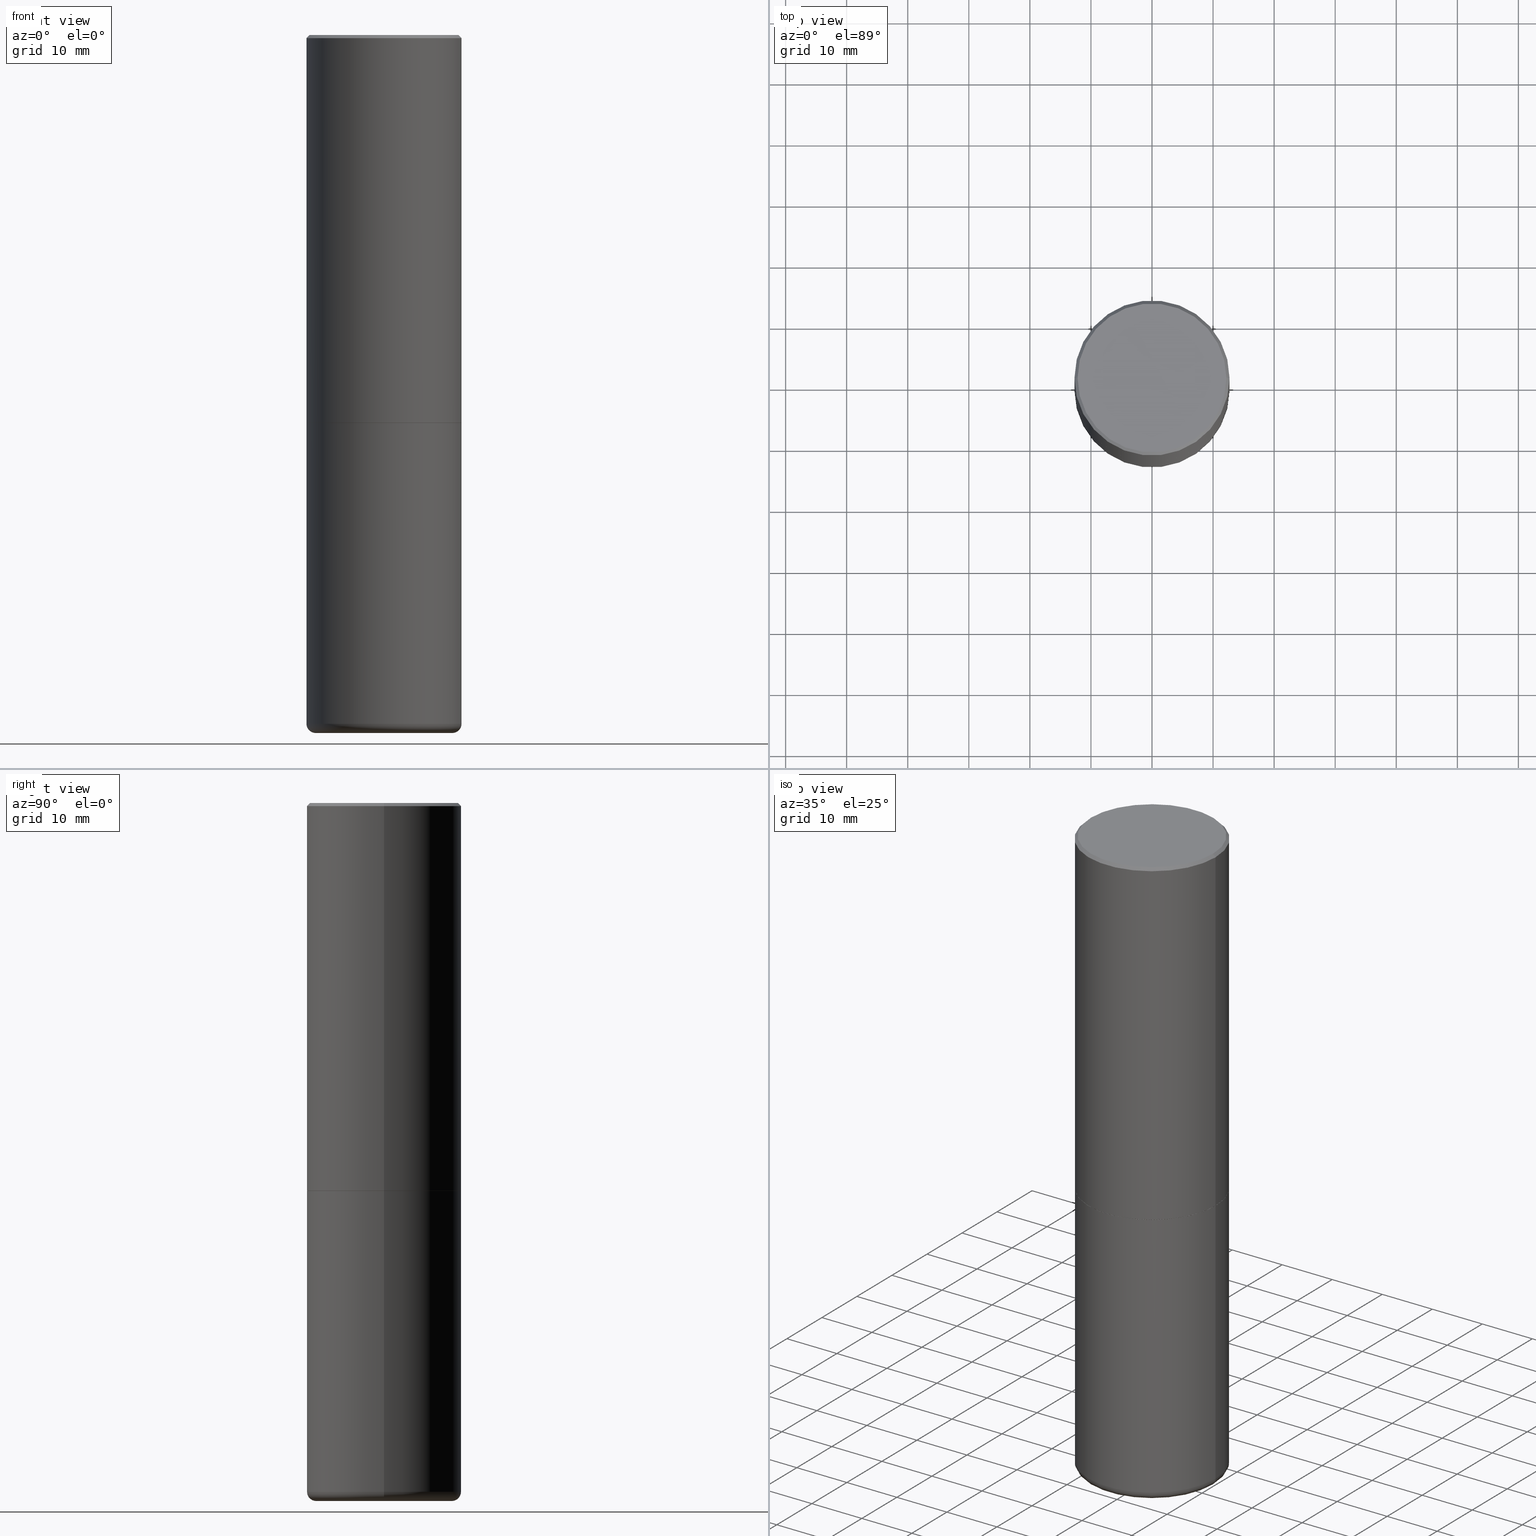
[diagram: canonical four-view strip — front | top / right | iso, engineering-drawing reading convention]
A machine part, canonical four-view strip (front | top / right | iso — engineering-drawing reading convention). The complete STEP part file that produces these views, byte-faithful:
ISO-10303-21;
HEADER;
FILE_DESCRIPTION (( 'STEP AP203' ),
    '1' );
FILE_NAME ('38660.STEP',
    '2024-03-03T11:23:34',
    ( '' ),
    ( '' ),
    'SwSTEP 2.0',
    'SolidWorks 2023',
    '' );
FILE_SCHEMA (( 'CONFIG_CONTROL_DESIGN' ));
ENDSEC;

DATA;
#1 = DIRECTION ( 'NONE',  ( 1.000000000000000000, -6.982962677686269077E-15, 0.000000000000000000 ) ) ;
#2 = AXIS2_PLACEMENT_3D ( 'NONE', #137, #275, #305 ) ;
#3 = CC_DESIGN_APPROVAL ( #101, ( #155 ) ) ;
#4 = ORIENTED_EDGE ( 'NONE', *, *, #262, .T. ) ;
#5 = ADVANCED_FACE ( 'NONE', ( #62 ), #239, .T. ) ;
#6 = PRODUCT_DEFINITION ( 'UNKNOWN', '', #155, #264 ) ;
#7 = CARTESIAN_POINT ( 'NONE',  ( 0.5000000000000000000, -1.222018468595099830E-14, -2.500000000000000000 ) ) ;
#8 = CIRCLE ( 'NONE', #256, 0.4999999999999999445 ) ;
#9 = ADVANCED_FACE ( 'NONE', ( #167 ), #205, .T. ) ;
#10 = APPROVAL_STATUS ( 'not_yet_approved' ) ;
#11 = PERSON_AND_ORGANIZATION_ROLE ( 'classification_officer' ) ;
#12 = AXIS2_PLACEMENT_3D ( 'NONE', #243, #401, #70 ) ;
#13 = FACE_OUTER_BOUND ( 'NONE', #118, .T. ) ;
#14 = EDGE_CURVE ( 'NONE', #312, #115, #348, .T. ) ;
#15 = DIRECTION ( 'NONE',  ( 1.000000000000000000, -6.982962677686266711E-15, 0.000000000000000000 ) ) ;
#16 = EDGE_LOOP ( 'NONE', ( #411, #406, #53, #126 ) ) ;
#17 = PERSON_AND_ORGANIZATION ( #43, #354 ) ;
#18 = CARTESIAN_POINT ( 'NONE',  ( 0.4999999999999999445, -3.500078625662628685E-15, -0.02000000000000010797 ) ) ;
#19 = ORIENTED_EDGE ( 'NONE', *, *, #139, .T. ) ;
#20 = EDGE_CURVE ( 'NONE', #413, #394, #388, .T. ) ;
#21 = DIRECTION ( 'NONE',  ( -2.445468806185136597E-29, 3.491481338843145583E-15, 1.000000000000000000 ) ) ;
#22 = CIRCLE ( 'NONE', #387, 0.5000000000000002220 ) ;
#23 = DIRECTION ( 'NONE',  ( 1.000000000000000000, -6.982962677686269866E-15, 0.000000000000000000 ) ) ;
#24 = CC_DESIGN_PERSON_AND_ORGANIZATION_ASSIGNMENT ( #238, #47, ( #155 ) ) ;
#25 = ORIENTED_EDGE ( 'NONE', *, *, #373, .F. ) ;
#26 = LINE ( 'NONE', #132, #311 ) ;
#27 = DIRECTION ( 'NONE',  ( -2.445468806185136597E-29, 3.491481338843145583E-15, 1.000000000000000000 ) ) ;
#28 = DIRECTION ( 'NONE',  ( 1.000000000000000000, 0.000000000000000000, 0.000000000000000000 ) ) ;
#29 = AXIS2_PLACEMENT_3D ( 'NONE', #255, #412, #52 ) ;
#30 = CC_DESIGN_APPROVAL ( #317, ( #247 ) ) ;
#31 = DIRECTION ( 'NONE',  ( 1.000000000000000000, -6.982962677686266711E-15, 0.000000000000000000 ) ) ;
#32 = DIRECTION ( 'NONE',  ( 1.000000000000000000, -6.982962677686262766E-15, 0.000000000000000000 ) ) ;
#33 = ORIENTED_EDGE ( 'NONE', *, *, #84, .F. ) ;
#34 = DIRECTION ( 'NONE',  ( 7.105427357601001859E-15, 1.000000000000000000, -3.491481338843145583E-15 ) ) ;
#35 = PRODUCT ( '38660', '38660', '', ( #195 ) ) ;
#36 = LOCAL_TIME ( 6, 23, 34.00000000000000000, #271 ) ;
#37 = LINE ( 'NONE', #170, #153 ) ;
#38 = CARTESIAN_POINT ( 'NONE',  ( 0.4400000000000000022, -1.857468072264552372E-14, -4.440000000000000391 ) ) ;
#39 = EDGE_CURVE ( 'NONE', #66, #413, #22, .T. ) ;
#40 = AXIS2_PLACEMENT_3D ( 'NONE', #396, #337, #31 ) ;
#41 = CARTESIAN_POINT ( 'NONE',  ( 0.5000000000000000000, -3.491481338843133355E-15, 2.438088387897967896E-29 ) ) ;
#42 = DATE_TIME_ROLE ( 'creation_date' ) ;
#43 = PERSON ( 'UNSPECIFIED', 'UNSPECIFIED', 'UNSPECIFIED', ('UNSPECIFIED'), ('UNSPECIFIED'), ('UNSPECIFIED') ) ;
#44 = EDGE_CURVE ( 'NONE', #66, #163, #272, .T. ) ;
#45 = CARTESIAN_POINT ( 'NONE',  ( 4.890937612370299433E-31, -6.982962677686328587E-17, -0.02000000000000010797 ) ) ;
#46 = DIRECTION ( 'NONE',  ( -2.445468806185136597E-29, 3.491481338843145583E-15, 1.000000000000000000 ) ) ;
#47 = PERSON_AND_ORGANIZATION_ROLE ( 'creator' ) ;
#48 = AXIS2_PLACEMENT_3D ( 'NONE', #340, #134, #173 ) ;
#49 = VECTOR ( 'NONE', #81, 39.37007874015748143 ) ;
#50 = CARTESIAN_POINT ( 'NONE',  ( -0.4989999999999999991, -5.183095095664965021E-15, -2.500000000000000000 ) ) ;
#51 = ORIENTED_EDGE ( 'NONE', *, *, #219, .T. ) ;
#52 = DIRECTION ( 'NONE',  ( 1.000000000000000000, -6.982962677686265922E-15, 4.876176775795935793E-29 ) ) ;
#53 = ORIENTED_EDGE ( 'NONE', *, *, #176, .T. ) ;
#54 = DIRECTION ( 'NONE',  ( 2.445468806185136597E-29, -3.491481338843145583E-15, -1.000000000000000000 ) ) ;
#55 = DIRECTION ( 'NONE',  ( 2.438088387897960049E-29, -3.491481338843145188E-15, -1.000000000000000000 ) ) ;
#56 = VECTOR ( 'NONE', #95, 39.37007874015748143 ) ;
#57 =( GEOMETRIC_REPRESENTATION_CONTEXT ( 3 ) GLOBAL_UNCERTAINTY_ASSIGNED_CONTEXT ( ( #102 ) ) GLOBAL_UNIT_ASSIGNED_CONTEXT ( ( #269, #341, #228 ) ) REPRESENTATION_CONTEXT ( 'NONE', 'WORKASPACE' ) );
#58 = DIRECTION ( 'NONE',  ( -2.445468806185136597E-29, 3.491481338843145583E-15, 1.000000000000000000 ) ) ;
#59 = ORIENTED_EDGE ( 'NONE', *, *, #61, .F. ) ;
#60 = DIRECTION ( 'NONE',  ( 0.000000000000000000, 0.000000000000000000, 1.000000000000000000 ) ) ;
#61 = EDGE_CURVE ( 'NONE', #90, #160, #240, .T. ) ;
#62 = FACE_OUTER_BOUND ( 'NONE', #82, .T. ) ;
#63 = ORIENTED_EDGE ( 'NONE', *, *, #20, .T. ) ;
#64 = CARTESIAN_POINT ( 'NONE',  ( 0.5000000000000002220, -1.221669320461215845E-14, -2.499000000000000110 ) ) ;
#65 = ORIENTED_EDGE ( 'NONE', *, *, #286, .T. ) ;
#66 = VERTEX_POINT ( 'NONE', #109 ) ;
#67 = AXIS2_PLACEMENT_3D ( 'NONE', #45, #319, #279 ) ;
#68 = AXIS2_PLACEMENT_3D ( 'NONE', #404, #310, #333 ) ;
#69 = DIRECTION ( 'NONE',  ( -2.445468806185136877E-29, 3.491481338843145188E-15, 1.000000000000000000 ) ) ;
#70 = DIRECTION ( 'NONE',  ( 1.000000000000000000, -6.982962677686269077E-15, 0.000000000000000000 ) ) ;
#71 = FACE_OUTER_BOUND ( 'NONE', #93, .T. ) ;
#72 = CC_DESIGN_PERSON_AND_ORGANIZATION_ASSIGNMENT ( #116, #143, ( #6 ) ) ;
#73 = SHAPE_DEFINITION_REPRESENTATION ( #131, #235 ) ;
#74 = DIRECTION ( 'NONE',  ( -2.445468806185136597E-29, 3.491481338843145583E-15, 1.000000000000000000 ) ) ;
#75 = APPROVAL_STATUS ( 'not_yet_approved' ) ;
#76 = CC_DESIGN_PERSON_AND_ORGANIZATION_ASSIGNMENT ( #302, #164, ( #35 ) ) ;
#77 = PLANE ( 'NONE',  #293 ) ;
#78 = EDGE_LOOP ( 'NONE', ( #409, #418, #303, #298 ) ) ;
#79 = VECTOR ( 'NONE', #151, 39.37007874015748143 ) ;
#80 = AXIS2_PLACEMENT_3D ( 'NONE', #94, #34, #393 ) ;
#81 = DIRECTION ( 'NONE',  ( -2.445468806185136877E-29, 3.491481338843145188E-15, 1.000000000000000000 ) ) ;
#82 = EDGE_LOOP ( 'NONE', ( #225, #187, #63, #221 ) ) ;
#83 = DIRECTION ( 'NONE',  ( 1.000000000000000000, -6.982962677686266711E-15, 4.876176775795935793E-29 ) ) ;
#84 = EDGE_CURVE ( 'NONE', #261, #184, #140, .T. ) ;
#85 = DIRECTION ( 'NONE',  ( -0.7071067811867165487, 7.493145998870964739E-15, 0.7071067811863784858 ) ) ;
#86 = APPROVAL ( #127, 'UNSPECIFIED' ) ;
#87 = DIRECTION ( 'NONE',  ( 1.000000000000000000, -6.982962677686266711E-15, 4.876431871984414276E-29 ) ) ;
#88 = VECTOR ( 'NONE', #227, 39.37007874015748143 ) ;
#89 = CC_DESIGN_APPROVAL ( #86, ( #6 ) ) ;
#90 = VERTEX_POINT ( 'NONE', #208 ) ;
#91 = EDGE_LOOP ( 'NONE', ( #371, #355, #381, #252 ) ) ;
#92 = CARTESIAN_POINT ( 'NONE',  ( 6.113672015462842613E-29, -8.728703347107864943E-15, -2.500000000000000000 ) ) ;
#93 = EDGE_LOOP ( 'NONE', ( #19, #100, #258, #204 ) ) ;
#94 = CARTESIAN_POINT ( 'NONE',  ( -0.4400000000000000022, -1.237578910711912656E-14, -4.440000000000000391 ) ) ;
#95 = DIRECTION ( 'NONE',  ( -2.445468806185136877E-29, 3.491481338843145188E-15, 1.000000000000000000 ) ) ;
#96 = AXIS2_PLACEMENT_3D ( 'NONE', #372, #27, #342 ) ;
#97 = CIRCLE ( 'NONE', #80, 0.05999999999999969941 ) ;
#98 = ADVANCED_FACE ( 'NONE', ( #246 ), #284, .T. ) ;
#99 = CARTESIAN_POINT ( 'NONE',  ( 7.306959900346538153E-46, -1.043240219266313067E-31, -2.987958743070287587E-17 ) ) ;
#100 = ORIENTED_EDGE ( 'NONE', *, *, #268, .T. ) ;
#101 = APPROVAL ( #75, 'UNSPECIFIED' ) ;
#102 = UNCERTAINTY_MEASURE_WITH_UNIT (LENGTH_MEASURE( 1.000000000000000082E-05 ), #269, 'distance_accuracy_value', 'NONE');
#103 = APPROVAL_ROLE ( '' ) ;
#104 = EDGE_LOOP ( 'NONE', ( #366, #358 ) ) ;
#105 = AXIS2_PLACEMENT_3D ( 'NONE', #277, #58, #32 ) ;
#106 = EDGE_CURVE ( 'NONE', #158, #184, #209, .T. ) ;
#107 = CARTESIAN_POINT ( 'NONE',  ( -0.4400000000000000022, -1.226737072655639127E-14, -4.499999999999999112 ) ) ;
#108 = DATE_AND_TIME ( #318, #145 ) ;
#109 = CARTESIAN_POINT ( 'NONE',  ( -0.5000000000000002220, -8.448070674724393209E-16, -2.499000000000000110 ) ) ;
#110 = ADVANCED_FACE ( 'NONE', ( #71 ), #125, .T. ) ;
#111 = TOROIDAL_SURFACE ( 'NONE', #380, 0.4400000000000000022, 0.05999999999999969941 ) ;
#112 = AXIS2_PLACEMENT_3D ( 'NONE', #226, #60, #28 ) ;
#113 = DIRECTION ( 'NONE',  ( -1.000000000000000000, 6.982962677686265922E-15, -4.876176775795935793E-29 ) ) ;
#114 = CARTESIAN_POINT ( 'NONE',  ( 3.351822085289407153E-15, 0.4799999999999999267, -1.690850836360061184E-15 ) ) ;
#115 = VERTEX_POINT ( 'NONE', #107 ) ;
#116 = PERSON_AND_ORGANIZATION ( #43, #354 ) ;
#117 = CARTESIAN_POINT ( 'NONE',  ( -0.4999999999999998335, -1.194946346566306765E-14, -4.440000000000000391 ) ) ;
#118 = EDGE_LOOP ( 'NONE', ( #383, #168, #327, #33 ) ) ;
#119 = AXIS2_PLACEMENT_3D ( 'NONE', #220, #407, #83 ) ;
#120 = FACE_OUTER_BOUND ( 'NONE', #292, .T. ) ;
#121 = ORIENTED_EDGE ( 'NONE', *, *, #185, .T. ) ;
#122 = MANIFOLD_SOLID_BREP ( 'Body-Move/Copy2[1]', #285 ) ;
#123 = LINE ( 'NONE', #18, #79 ) ;
#124 = EDGE_LOOP ( 'NONE', ( #332, #290 ) ) ;
#125 = CONICAL_SURFACE ( 'NONE', #265, 0.4989999999999999991, 0.7853981633976873100 ) ;
#126 = ORIENTED_EDGE ( 'NONE', *, *, #259, .F. ) ;
#127 = APPROVAL_STATUS ( 'not_yet_approved' ) ;
#128 = ORIENTED_EDGE ( 'NONE', *, *, #262, .F. ) ;
#129 = APPROVAL_ROLE ( '' ) ;
#130 = DIRECTION ( 'NONE',  ( 1.000000000000000000, -6.982962677686269866E-15, 0.000000000000000000 ) ) ;
#131 = PRODUCT_DEFINITION_SHAPE ( 'NONE', 'NONE',  #6 ) ;
#132 = CARTESIAN_POINT ( 'NONE',  ( 0.4989999999999999991, -1.221320172327331228E-14, -2.500000000000000000 ) ) ;
#133 = APPLICATION_CONTEXT ( 'configuration controlled 3d designs of mechanical parts and assemblies' ) ;
#134 = DIRECTION ( 'NONE',  ( -2.445468806185136597E-29, 3.491481338843145583E-15, 1.000000000000000000 ) ) ;
#135 = AXIS2_PLACEMENT_3D ( 'NONE', #399, #244, #113 ) ;
#136 = APPROVAL_PERSON_ORGANIZATION ( #395, #101, #253 ) ;
#137 = CARTESIAN_POINT ( 'NONE',  ( 0.000000000000000000, 0.000000000000000000, 0.000000000000000000 ) ) ;
#138 = CARTESIAN_POINT ( 'NONE',  ( -0.4999999999999999445, 3.421651712066269663E-15, -0.02000000000000010797 ) ) ;
#139 = EDGE_CURVE ( 'NONE', #270, #361, #169, .T. ) ;
#140 = CIRCLE ( 'NONE', #12, 0.5000000000000000000 ) ;
#141 = CIRCLE ( 'NONE', #274, 0.5000000000000000000 ) ;
#142 = CALENDAR_DATE ( 2024, 3, 3 ) ;
#143 = PERSON_AND_ORGANIZATION_ROLE ( 'creator' ) ;
#144 = CLOSED_SHELL ( 'NONE', ( #110, #307, #338, #213, #5, #9, #250, #203 ) ) ;
#145 = LOCAL_TIME ( 6, 23, 34.00000000000000000, #186 ) ;
#146 = CARTESIAN_POINT ( 'NONE',  ( -0.5000000000000000000, -8.562726566985215043E-15, -2.500000000000000000 ) ) ;
#147 = ORIENTED_EDGE ( 'NONE', *, *, #106, .F. ) ;
#148 = LINE ( 'NONE', #289, #49 ) ;
#149 = ORIENTED_EDGE ( 'NONE', *, *, #171, .T. ) ;
#150 = CALENDAR_DATE ( 2024, 3, 3 ) ;
#151 = DIRECTION ( 'NONE',  ( 0.7071067811865460184, -7.319954787623251312E-15, -0.7071067811865490160 ) ) ;
#152 = EDGE_LOOP ( 'NONE', ( #267, #299, #363, #194 ) ) ;
#153 = VECTOR ( 'NONE', #241, 39.37007874015748143 ) ;
#154 = PRODUCT_RELATED_PRODUCT_CATEGORY ( 'detail', '', ( #35 ) ) ;
#155 = PRODUCT_DEFINITION_FORMATION_WITH_SPECIFIED_SOURCE ( 'ANY', '', #35, .NOT_KNOWN. ) ;
#156 = CARTESIAN_POINT ( 'NONE',  ( 6.111226546656657010E-29, -8.725211865769021935E-15, -2.499000000000000110 ) ) ;
#157 = FACE_OUTER_BOUND ( 'NONE', #124, .T. ) ;
#158 = VERTEX_POINT ( 'NONE', #344 ) ;
#159 = DIRECTION ( 'NONE',  ( -1.000000000000000000, 6.982962677686266711E-15, 0.000000000000000000 ) ) ;
#160 = VERTEX_POINT ( 'NONE', #350 ) ;
#161 = CIRCLE ( 'NONE', #190, 0.5000000000000002220 ) ;
#162 = APPROVAL_PERSON_ORGANIZATION ( #304, #86, #129 ) ;
#163 = VERTEX_POINT ( 'NONE', #138 ) ;
#164 = PERSON_AND_ORGANIZATION_ROLE ( 'design_owner' ) ;
#165 = DIRECTION ( 'NONE',  ( -2.445468806185136597E-29, 3.491481338843145583E-15, 1.000000000000000000 ) ) ;
#166 = EDGE_CURVE ( 'NONE', #394, #163, #301, .T. ) ;
#167 = FACE_OUTER_BOUND ( 'NONE', #91, .T. ) ;
#168 = ORIENTED_EDGE ( 'NONE', *, *, #259, .T. ) ;
#169 = CIRCLE ( 'NONE', #336, 0.4989999999999999991 ) ;
#170 = CARTESIAN_POINT ( 'NONE',  ( -0.4999999999999999445, 3.421651712066269663E-15, -0.02000000000000010797 ) ) ;
#171 = EDGE_CURVE ( 'NONE', #90, #163, #37, .T. ) ;
#172 = DIRECTION ( 'NONE',  ( -6.982962677686266711E-15, -1.000000000000000000, 3.491481338843145583E-15 ) ) ;
#173 = DIRECTION ( 'NONE',  ( 1.000000000000000000, -6.982962677686266711E-15, 4.876431871984414276E-29 ) ) ;
#174 = CONICAL_SURFACE ( 'NONE', #408, 0.4999999999999999445, 0.7853981633974461696 ) ;
#175 = AXIS2_PLACEMENT_3D ( 'NONE', #92, #339, #370 ) ;
#176 = EDGE_CURVE ( 'NONE', #312, #158, #322, .T. ) ;
#177 = DATE_TIME_ROLE ( 'classification_date' ) ;
#178 = DATE_AND_TIME ( #150, #36 ) ;
#179 = DIRECTION ( 'NONE',  ( -1.000000000000000000, 6.982962677686265922E-15, -4.876176775795935793E-29 ) ) ;
#180 = CALENDAR_DATE ( 2024, 3, 3 ) ;
#181 = AXIS2_PLACEMENT_3D ( 'NONE', #38, #172, #313 ) ;
#182 = AXIS2_PLACEMENT_3D ( 'NONE', #99, #201, #87 ) ;
#183 = FACE_OUTER_BOUND ( 'NONE', #308, .T. ) ;
#184 = VERTEX_POINT ( 'NONE', #7 ) ;
#185 = EDGE_CURVE ( 'NONE', #158, #202, #415, .T. ) ;
#186 = COORDINATED_UNIVERSAL_TIME_OFFSET ( 5, 0, .BEHIND. ) ;
#187 = ORIENTED_EDGE ( 'NONE', *, *, #39, .T. ) ;
#188 = DIRECTION ( 'NONE',  ( -1.000000000000000000, 6.982962677686266711E-15, 0.000000000000000000 ) ) ;
#189 = ORIENTED_EDGE ( 'NONE', *, *, #61, .T. ) ;
#190 = AXIS2_PLACEMENT_3D ( 'NONE', #156, #216, #23 ) ;
#191 = CONICAL_SURFACE ( 'NONE', #223, 0.4999999999999999445, 0.7853981633974461696 ) ;
#192 = CARTESIAN_POINT ( 'NONE',  ( 0.000000000000000000, 0.000000000000000000, 0.000000000000000000 ) ) ;
#193 =( LENGTH_UNIT ( ) NAMED_UNIT ( * ) SI_UNIT ( $, .METRE. ) );
#194 = ORIENTED_EDGE ( 'NONE', *, *, #20, .F. ) ;
#195 = MECHANICAL_CONTEXT ( 'NONE', #133, 'mechanical' ) ;
#196 = AXIS2_PLACEMENT_3D ( 'NONE', #352, #21, #329 ) ;
#197 = PLANE ( 'NONE',  #175 ) ;
#198 = APPROVAL_PERSON_ORGANIZATION ( #17, #317, #103 ) ;
#199 = ADVANCED_FACE ( 'NONE', ( #218 ), #111, .T. ) ;
#200 = DIRECTION ( 'NONE',  ( -2.445468806185136597E-29, 3.491481338843145583E-15, 1.000000000000000000 ) ) ;
#201 = DIRECTION ( 'NONE',  ( -2.445468806185136597E-29, 3.491481338843145583E-15, 1.000000000000000000 ) ) ;
#202 = VERTEX_POINT ( 'NONE', #117 ) ;
#203 = ADVANCED_FACE ( 'NONE', ( #326 ), #77, .F. ) ;
#204 = ORIENTED_EDGE ( 'NONE', *, *, #328, .F. ) ;
#205 = CONICAL_SURFACE ( 'NONE', #40, 0.4989999999999999991, 0.7853981633976873100 ) ;
#206 = LOCAL_TIME ( 6, 23, 34.00000000000000000, #347 ) ;
#207 = CARTESIAN_POINT ( 'NONE',  ( 6.113672015462842613E-29, -8.728703347107864943E-15, -2.500000000000000000 ) ) ;
#208 = CARTESIAN_POINT ( 'NONE',  ( -0.4799999999999999267, 3.386736898677838408E-15, -2.987958743072644309E-17 ) ) ;
#209 = LINE ( 'NONE', #41, #309 ) ;
#210 = DIRECTION ( 'NONE',  ( 1.000000000000000000, -6.982962677686266711E-15, 0.000000000000000000 ) ) ;
#211 = FACE_OUTER_BOUND ( 'NONE', #152, .T. ) ;
#212 = PLANE ( 'NONE',  #29 ) ;
#213 = ADVANCED_FACE ( 'NONE', ( #120 ), #174, .T. ) ;
#214 = AXIS2_PLACEMENT_3D ( 'NONE', #192, #321, #357 ) ;
#215 = SECURITY_CLASSIFICATION_LEVEL ( 'unclassified' ) ;
#216 = DIRECTION ( 'NONE',  ( -2.445468806185136597E-29, 3.491481338843145583E-15, 1.000000000000000000 ) ) ;
#217 = EDGE_LOOP ( 'NONE', ( #385, #229 ) ) ;
#218 = FACE_OUTER_BOUND ( 'NONE', #78, .T. ) ;
#219 = EDGE_CURVE ( 'NONE', #202, #261, #148, .T. ) ;
#220 = CARTESIAN_POINT ( 'NONE',  ( 0.000000000000000000, 0.000000000000000000, 0.000000000000000000 ) ) ;
#221 = ORIENTED_EDGE ( 'NONE', *, *, #286, .F. ) ;
#222 = ADVANCED_FACE ( 'NONE', ( #257 ), #391, .T. ) ;
#223 = AXIS2_PLACEMENT_3D ( 'NONE', #266, #362, #159 ) ;
#224 = FACE_OUTER_BOUND ( 'NONE', #414, .T. ) ;
#225 = ORIENTED_EDGE ( 'NONE', *, *, #44, .F. ) ;
#226 = CARTESIAN_POINT ( 'NONE',  ( 0.000000000000000000, 0.000000000000000000, 0.000000000000000000 ) ) ;
#227 = DIRECTION ( 'NONE',  ( -2.445468806185136877E-29, 3.491481338843145188E-15, 1.000000000000000000 ) ) ;
#228 =( NAMED_UNIT ( * ) SI_UNIT ( $, .STERADIAN. ) SOLID_ANGLE_UNIT ( ) );
#229 = ORIENTED_EDGE ( 'NONE', *, *, #374, .F. ) ;
#230 = VECTOR ( 'NONE', #85, 39.37007874015748143 ) ;
#231 = CARTESIAN_POINT ( 'NONE',  ( 0.4400000000000000022, -1.878416960297611046E-14, -4.499999999999999112 ) ) ;
#232 = CC_DESIGN_SECURITY_CLASSIFICATION ( #247, ( #155 ) ) ;
#233 = CARTESIAN_POINT ( 'NONE',  ( 0.5000000000000001110, -3.491481338843134539E-15, 2.438088387897968457E-29 ) ) ;
#234 = EDGE_CURVE ( 'NONE', #413, #66, #161, .T. ) ;
#235 = ADVANCED_BREP_SHAPE_REPRESENTATION ( '38660', ( #122, #276, #112 ), #57 ) ;
#236 = CARTESIAN_POINT ( 'NONE',  ( -0.4989999999999999991, -5.177796641316741831E-15, -2.500000000000000000 ) ) ;
#237 = ADVANCED_FACE ( 'NONE', ( #13 ), #251, .T. ) ;
#238 = PERSON_AND_ORGANIZATION ( #43, #354 ) ;
#239 = CYLINDRICAL_SURFACE ( 'NONE', #2, 0.5000000000000001110 ) ;
#240 = CIRCLE ( 'NONE', #48, 0.4799999999999999267 ) ;
#241 = DIRECTION ( 'NONE',  ( -0.7071067811865460184, 2.468850131082241283E-15, -0.7071067811865490160 ) ) ;
#242 = AXIS2_PLACEMENT_3D ( 'NONE', #281, #397, #379 ) ;
#243 = CARTESIAN_POINT ( 'NONE',  ( 6.113672015462842613E-29, -8.728703347107864943E-15, -2.500000000000000000 ) ) ;
#244 = DIRECTION ( 'NONE',  ( 2.438088387897960049E-29, -3.491481338843145188E-15, -1.000000000000000000 ) ) ;
#245 = PERSON_AND_ORGANIZATION_ROLE ( 'design_supplier' ) ;
#246 = FACE_OUTER_BOUND ( 'NONE', #217, .T. ) ;
#247 = SECURITY_CLASSIFICATION ( '', '', #215 ) ;
#248 = DIRECTION ( 'NONE',  ( 1.000000000000000000, -6.982962677686266711E-15, 0.000000000000000000 ) ) ;
#249 = DATE_AND_TIME ( #375, #323 ) ;
#250 = ADVANCED_FACE ( 'NONE', ( #157 ), #212, .F. ) ;
#251 = CYLINDRICAL_SURFACE ( 'NONE', #214, 0.5000000000000000000 ) ;
#252 = ORIENTED_EDGE ( 'NONE', *, *, #39, .F. ) ;
#253 = APPROVAL_ROLE ( '' ) ;
#254 = CC_DESIGN_DATE_AND_TIME_ASSIGNMENT ( #249, #177, ( #247 ) ) ;
#255 = CARTESIAN_POINT ( 'NONE',  ( 6.113672015462842613E-29, -8.728703347107864943E-15, -2.500000000000000000 ) ) ;
#256 = AXIS2_PLACEMENT_3D ( 'NONE', #294, #291, #15 ) ;
#257 = FACE_OUTER_BOUND ( 'NONE', #16, .T. ) ;
#258 = ORIENTED_EDGE ( 'NONE', *, *, #234, .F. ) ;
#259 = EDGE_CURVE ( 'NONE', #202, #158, #280, .T. ) ;
#260 = CARTESIAN_POINT ( 'NONE',  ( 4.890937612370299433E-31, -6.982962677686328587E-17, -0.02000000000000010797 ) ) ;
#261 = VERTEX_POINT ( 'NONE', #146 ) ;
#262 = EDGE_CURVE ( 'NONE', #160, #394, #123, .T. ) ;
#263 = CARTESIAN_POINT ( 'NONE',  ( 6.113672015462842613E-29, -8.728703347107864943E-15, -2.500000000000000000 ) ) ;
#264 = DESIGN_CONTEXT ( 'detailed design', #314, 'design' ) ;
#265 = AXIS2_PLACEMENT_3D ( 'NONE', #207, #376, #248 ) ;
#266 = CARTESIAN_POINT ( 'NONE',  ( 4.890937612370299433E-31, -6.982962677686328587E-17, -0.02000000000000010797 ) ) ;
#267 = ORIENTED_EDGE ( 'NONE', *, *, #234, .T. ) ;
#268 = EDGE_CURVE ( 'NONE', #361, #66, #382, .T. ) ;
#269 =( CONVERSION_BASED_UNIT ( 'INCH', #368 ) LENGTH_UNIT ( ) NAMED_UNIT ( #392 ) );
#270 = VERTEX_POINT ( 'NONE', #360 ) ;
#271 = COORDINATED_UNIVERSAL_TIME_OFFSET ( 5, 0, .BEHIND. ) ;
#272 = LINE ( 'NONE', #390, #56 ) ;
#273 = FACE_OUTER_BOUND ( 'NONE', #104, .T. ) ;
#274 = AXIS2_PLACEMENT_3D ( 'NONE', #389, #200, #1 ) ;
#275 = DIRECTION ( 'NONE',  ( -2.445468806185136597E-29, 3.491481338843145583E-15, 1.000000000000000000 ) ) ;
#276 = MANIFOLD_SOLID_BREP ( 'Body-Move/Copy2[2]', #144 ) ;
#277 = CARTESIAN_POINT ( 'NONE',  ( 1.100460962783311244E-28, -1.571166602479415374E-14, -4.499999999999999112 ) ) ;
#278 = ORIENTED_EDGE ( 'NONE', *, *, #373, .T. ) ;
#279 = DIRECTION ( 'NONE',  ( 1.000000000000000000, -6.982962677686266711E-15, 0.000000000000000000 ) ) ;
#280 = CIRCLE ( 'NONE', #196, 0.5000000000000001110 ) ;
#281 = CARTESIAN_POINT ( 'NONE',  ( 1.085788149946200541E-28, -1.550217714446356700E-14, -4.440000000000000391 ) ) ;
#282 = PERSON_AND_ORGANIZATION ( #43, #354 ) ;
#283 = COORDINATED_UNIVERSAL_TIME_OFFSET ( 5, 0, .BEHIND. ) ;
#284 = PLANE ( 'NONE',  #135 ) ;
#285 = CLOSED_SHELL ( 'NONE', ( #295, #199, #320, #237, #222, #98 ) ) ;
#286 = EDGE_CURVE ( 'NONE', #163, #394, #8, .T. ) ;
#287 = COORDINATED_UNIVERSAL_TIME_OFFSET ( 5, 0, .BEHIND. ) ;
#288 = CYLINDRICAL_SURFACE ( 'NONE', #68, 0.5000000000000001110 ) ;
#289 = CARTESIAN_POINT ( 'NONE',  ( -0.5000000000000000000, 3.552713678800500929E-15, -2.459467545127452891E-29 ) ) ;
#290 = ORIENTED_EDGE ( 'NONE', *, *, #300, .F. ) ;
#291 = DIRECTION ( 'NONE',  ( -2.445468806185136597E-29, 3.491481338843145583E-15, 1.000000000000000000 ) ) ;
#292 = EDGE_LOOP ( 'NONE', ( #128, #59, #149, #65 ) ) ;
#293 = AXIS2_PLACEMENT_3D ( 'NONE', #114, #55, #179 ) ;
#294 = CARTESIAN_POINT ( 'NONE',  ( 4.890937612370299433E-31, -6.982962677686328587E-17, -0.02000000000000010797 ) ) ;
#295 = ADVANCED_FACE ( 'NONE', ( #183 ), #331, .T. ) ;
#296 = ORIENTED_EDGE ( 'NONE', *, *, #171, .F. ) ;
#297 = DIRECTION ( 'NONE',  ( 1.000000000000000000, -6.982962677686270655E-15, 4.883557194083114583E-29 ) ) ;
#298 = ORIENTED_EDGE ( 'NONE', *, *, #176, .F. ) ;
#299 = ORIENTED_EDGE ( 'NONE', *, *, #44, .T. ) ;
#300 = EDGE_CURVE ( 'NONE', #361, #270, #316, .T. ) ;
#301 = CIRCLE ( 'NONE', #67, 0.4999999999999999445 ) ;
#302 = PERSON_AND_ORGANIZATION ( #43, #354 ) ;
#303 = ORIENTED_EDGE ( 'NONE', *, *, #185, .F. ) ;
#304 = PERSON_AND_ORGANIZATION ( #43, #354 ) ;
#305 = DIRECTION ( 'NONE',  ( 1.000000000000000000, -6.982962677686267499E-15, 4.876176775795935793E-29 ) ) ;
#306 = DIRECTION ( 'NONE',  ( 0.7071067811867165487, -2.468850131084027659E-15, 0.7071067811863784858 ) ) ;
#307 = ADVANCED_FACE ( 'NONE', ( #211 ), #288, .T. ) ;
#308 = EDGE_LOOP ( 'NONE', ( #121, #51, #330, #147 ) ) ;
#309 = VECTOR ( 'NONE', #69, 39.37007874015748143 ) ;
#310 = DIRECTION ( 'NONE',  ( -2.445468806185136597E-29, 3.491481338843145583E-15, 1.000000000000000000 ) ) ;
#311 = VECTOR ( 'NONE', #306, 39.37007874015748143 ) ;
#312 = VERTEX_POINT ( 'NONE', #231 ) ;
#313 = DIRECTION ( 'NONE',  ( 1.000000000000000000, -6.982962677686238312E-15, 0.000000000000000000 ) ) ;
#314 = APPLICATION_CONTEXT ( 'configuration controlled 3d designs of mechanical parts and assemblies' ) ;
#315 = EDGE_CURVE ( 'NONE', #184, #261, #141, .T. ) ;
#316 = CIRCLE ( 'NONE', #367, 0.4989999999999999991 ) ;
#317 = APPROVAL ( #10, 'UNSPECIFIED' ) ;
#318 = CALENDAR_DATE ( 2024, 3, 3 ) ;
#319 = DIRECTION ( 'NONE',  ( -2.445468806185136597E-29, 3.491481338843145583E-15, 1.000000000000000000 ) ) ;
#320 = ADVANCED_FACE ( 'NONE', ( #273 ), #197, .F. ) ;
#321 = DIRECTION ( 'NONE',  ( -2.445468806185136597E-29, 3.491481338843145583E-15, 1.000000000000000000 ) ) ;
#322 = CIRCLE ( 'NONE', #181, 0.05999999999999969941 ) ;
#323 = LOCAL_TIME ( 6, 23, 34.00000000000000000, #287 ) ;
#324 = APPROVAL_DATE_TIME ( #403, #317 ) ;
#325 = DIRECTION ( 'NONE',  ( -2.445468806185136597E-29, 3.491481338843145583E-15, 1.000000000000000000 ) ) ;
#326 = FACE_OUTER_BOUND ( 'NONE', #334, .T. ) ;
#327 = ORIENTED_EDGE ( 'NONE', *, *, #106, .T. ) ;
#328 = EDGE_CURVE ( 'NONE', #270, #413, #26, .T. ) ;
#329 = DIRECTION ( 'NONE',  ( 1.000000000000000000, -6.982962677686265133E-15, 0.000000000000000000 ) ) ;
#330 = ORIENTED_EDGE ( 'NONE', *, *, #315, .F. ) ;
#331 = CYLINDRICAL_SURFACE ( 'NONE', #119, 0.5000000000000000000 ) ;
#332 = ORIENTED_EDGE ( 'NONE', *, *, #139, .F. ) ;
#333 = DIRECTION ( 'NONE',  ( 1.000000000000000000, -6.982962677686267499E-15, 4.876176775795935793E-29 ) ) ;
#334 = EDGE_LOOP ( 'NONE', ( #189, #278 ) ) ;
#335 = APPLICATION_PROTOCOL_DEFINITION ( 'international standard', 'config_control_design', 1994, #133 ) ;
#336 = AXIS2_PLACEMENT_3D ( 'NONE', #345, #74, #210 ) ;
#337 = DIRECTION ( 'NONE',  ( -2.445468806185136597E-29, 3.491481338843145583E-15, 1.000000000000000000 ) ) ;
#338 = ADVANCED_FACE ( 'NONE', ( #224 ), #191, .T. ) ;
#339 = DIRECTION ( 'NONE',  ( 2.438088387897960049E-29, -3.491481338843145188E-15, -1.000000000000000000 ) ) ;
#340 = CARTESIAN_POINT ( 'NONE',  ( 7.306959900346538153E-46, -1.043240219266313067E-31, -2.987958743070287587E-17 ) ) ;
#341 =( NAMED_UNIT ( * ) PLANE_ANGLE_UNIT ( ) SI_UNIT ( $, .RADIAN. ) );
#342 = DIRECTION ( 'NONE',  ( 1.000000000000000000, -6.982962677686262766E-15, 0.000000000000000000 ) ) ;
#343 = LOCAL_TIME ( 6, 23, 34.00000000000000000, #283 ) ;
#344 = CARTESIAN_POINT ( 'NONE',  ( 0.4999999999999998335, -1.899365848330670036E-14, -4.440000000000000391 ) ) ;
#345 = CARTESIAN_POINT ( 'NONE',  ( 6.113672015462842613E-29, -8.728703347107864943E-15, -2.500000000000000000 ) ) ;
#346 = EDGE_CURVE ( 'NONE', #115, #202, #97, .T. ) ;
#347 = COORDINATED_UNIVERSAL_TIME_OFFSET ( 5, 0, .BEHIND. ) ;
#348 = CIRCLE ( 'NONE', #96, 0.4400000000000000022 ) ;
#349 = DATE_AND_TIME ( #180, #343 ) ;
#350 = CARTESIAN_POINT ( 'NONE',  ( 0.4799999999999999267, -3.396558832296481704E-15, -2.987958743067928400E-17 ) ) ;
#351 = PERSON_AND_ORGANIZATION ( #43, #354 ) ;
#352 = CARTESIAN_POINT ( 'NONE',  ( 1.085788149946200541E-28, -1.550217714446356700E-14, -4.440000000000000391 ) ) ;
#353 = AXIS2_PLACEMENT_3D ( 'NONE', #378, #384, #297 ) ;
#354 = ORGANIZATION ( 'UNSPECIFIED', 'UNSPECIFIED', '' ) ;
#355 = ORIENTED_EDGE ( 'NONE', *, *, #300, .T. ) ;
#356 = APPROVAL_DATE_TIME ( #178, #86 ) ;
#357 = DIRECTION ( 'NONE',  ( 1.000000000000000000, -6.982962677686266711E-15, 4.876176775795935793E-29 ) ) ;
#358 = ORIENTED_EDGE ( 'NONE', *, *, #84, .T. ) ;
#359 = CC_DESIGN_DATE_AND_TIME_ASSIGNMENT ( #349, #42, ( #6 ) ) ;
#360 = CARTESIAN_POINT ( 'NONE',  ( 0.4989999999999999991, -1.221320172327331228E-14, -2.500000000000000000 ) ) ;
#361 = VERTEX_POINT ( 'NONE', #236 ) ;
#362 = DIRECTION ( 'NONE',  ( 2.445468806185136597E-29, -3.491481338843145583E-15, -1.000000000000000000 ) ) ;
#363 = ORIENTED_EDGE ( 'NONE', *, *, #166, .F. ) ;
#364 = CC_DESIGN_PERSON_AND_ORGANIZATION_ASSIGNMENT ( #351, #11, ( #247 ) ) ;
#365 = CARTESIAN_POINT ( 'NONE',  ( 6.111226546656657010E-29, -8.725211865769021935E-15, -2.499000000000000110 ) ) ;
#366 = ORIENTED_EDGE ( 'NONE', *, *, #315, .T. ) ;
#367 = AXIS2_PLACEMENT_3D ( 'NONE', #263, #325, #386 ) ;
#368 = LENGTH_MEASURE_WITH_UNIT ( LENGTH_MEASURE( 0.02539999999999999897 ), #193 );
#369 = ORIENTED_EDGE ( 'NONE', *, *, #166, .T. ) ;
#370 = DIRECTION ( 'NONE',  ( -1.000000000000000000, 6.982962677686265922E-15, -4.876176775795935793E-29 ) ) ;
#371 = ORIENTED_EDGE ( 'NONE', *, *, #268, .F. ) ;
#372 = CARTESIAN_POINT ( 'NONE',  ( 1.100460962783311244E-28, -1.571166602479415374E-14, -4.499999999999999112 ) ) ;
#373 = EDGE_CURVE ( 'NONE', #160, #90, #402, .T. ) ;
#374 = EDGE_CURVE ( 'NONE', #115, #312, #377, .T. ) ;
#375 = CALENDAR_DATE ( 2024, 3, 3 ) ;
#376 = DIRECTION ( 'NONE',  ( -2.445468806185136597E-29, 3.491481338843145583E-15, 1.000000000000000000 ) ) ;
#377 = CIRCLE ( 'NONE', #105, 0.4400000000000000022 ) ;
#378 = CARTESIAN_POINT ( 'NONE',  ( 1.085788149946200541E-28, -1.550217714446356700E-14, -4.440000000000000391 ) ) ;
#379 = DIRECTION ( 'NONE',  ( 1.000000000000000000, -6.982962677686265133E-15, 0.000000000000000000 ) ) ;
#380 = AXIS2_PLACEMENT_3D ( 'NONE', #405, #46, #410 ) ;
#381 = ORIENTED_EDGE ( 'NONE', *, *, #328, .T. ) ;
#382 = LINE ( 'NONE', #50, #230 ) ;
#383 = ORIENTED_EDGE ( 'NONE', *, *, #219, .F. ) ;
#384 = DIRECTION ( 'NONE',  ( -2.445468806185136597E-29, 3.491481338843145583E-15, 1.000000000000000000 ) ) ;
#385 = ORIENTED_EDGE ( 'NONE', *, *, #14, .F. ) ;
#386 = DIRECTION ( 'NONE',  ( 1.000000000000000000, -6.982962677686266711E-15, 0.000000000000000000 ) ) ;
#387 = AXIS2_PLACEMENT_3D ( 'NONE', #365, #165, #130 ) ;
#388 = LINE ( 'NONE', #233, #88 ) ;
#389 = CARTESIAN_POINT ( 'NONE',  ( 6.113672015462842613E-29, -8.728703347107864943E-15, -2.500000000000000000 ) ) ;
#390 = CARTESIAN_POINT ( 'NONE',  ( -0.5000000000000001110, 3.552713678800501718E-15, -2.459467545127453732E-29 ) ) ;
#391 = TOROIDAL_SURFACE ( 'NONE', #353, 0.4400000000000000022, 0.05999999999999969941 ) ;
#392 = DIMENSIONAL_EXPONENTS ( 1.000000000000000000, 0.000000000000000000, 0.000000000000000000, 0.000000000000000000, 0.000000000000000000, 0.000000000000000000, 0.000000000000000000 ) ;
#393 = DIRECTION ( 'NONE',  ( -1.000000000000000000, 7.105427357600993970E-15, 0.000000000000000000 ) ) ;
#394 = VERTEX_POINT ( 'NONE', #417 ) ;
#395 = PERSON_AND_ORGANIZATION ( #43, #354 ) ;
#396 = CARTESIAN_POINT ( 'NONE',  ( 6.113672015462842613E-29, -8.728703347107864943E-15, -2.500000000000000000 ) ) ;
#397 = DIRECTION ( 'NONE',  ( -2.445468806185136597E-29, 3.491481338843145583E-15, 1.000000000000000000 ) ) ;
#398 = APPROVAL_DATE_TIME ( #108, #101 ) ;
#399 = CARTESIAN_POINT ( 'NONE',  ( 1.490659901937463335E-28, -1.012379512866270429E-14, -4.499999999999999112 ) ) ;
#400 = CC_DESIGN_PERSON_AND_ORGANIZATION_ASSIGNMENT ( #282, #245, ( #155 ) ) ;
#401 = DIRECTION ( 'NONE',  ( -2.445468806185136597E-29, 3.491481338843145583E-15, 1.000000000000000000 ) ) ;
#402 = CIRCLE ( 'NONE', #182, 0.4799999999999999267 ) ;
#403 = DATE_AND_TIME ( #142, #206 ) ;
#404 = CARTESIAN_POINT ( 'NONE',  ( 0.000000000000000000, 0.000000000000000000, 0.000000000000000000 ) ) ;
#405 = CARTESIAN_POINT ( 'NONE',  ( 1.085788149946200541E-28, -1.550217714446356700E-14, -4.440000000000000391 ) ) ;
#406 = ORIENTED_EDGE ( 'NONE', *, *, #374, .T. ) ;
#407 = DIRECTION ( 'NONE',  ( -2.445468806185136597E-29, 3.491481338843145583E-15, 1.000000000000000000 ) ) ;
#408 = AXIS2_PLACEMENT_3D ( 'NONE', #260, #54, #188 ) ;
#409 = ORIENTED_EDGE ( 'NONE', *, *, #14, .T. ) ;
#410 = DIRECTION ( 'NONE',  ( 1.000000000000000000, -6.982962677686270655E-15, 4.883557194083114583E-29 ) ) ;
#411 = ORIENTED_EDGE ( 'NONE', *, *, #346, .F. ) ;
#412 = DIRECTION ( 'NONE',  ( -2.438088387897960049E-29, 3.491481338843145188E-15, 1.000000000000000000 ) ) ;
#413 = VERTEX_POINT ( 'NONE', #64 ) ;
#414 = EDGE_LOOP ( 'NONE', ( #25, #4, #369, #296 ) ) ;
#415 = CIRCLE ( 'NONE', #242, 0.5000000000000001110 ) ;
#416 = APPLICATION_PROTOCOL_DEFINITION ( 'international standard', 'config_control_design', 1994, #314 ) ;
#417 = CARTESIAN_POINT ( 'NONE',  ( 0.4999999999999999445, -3.500078625662628685E-15, -0.02000000000000010797 ) ) ;
#418 = ORIENTED_EDGE ( 'NONE', *, *, #346, .T. ) ;
ENDSEC;
END-ISO-10303-21;
